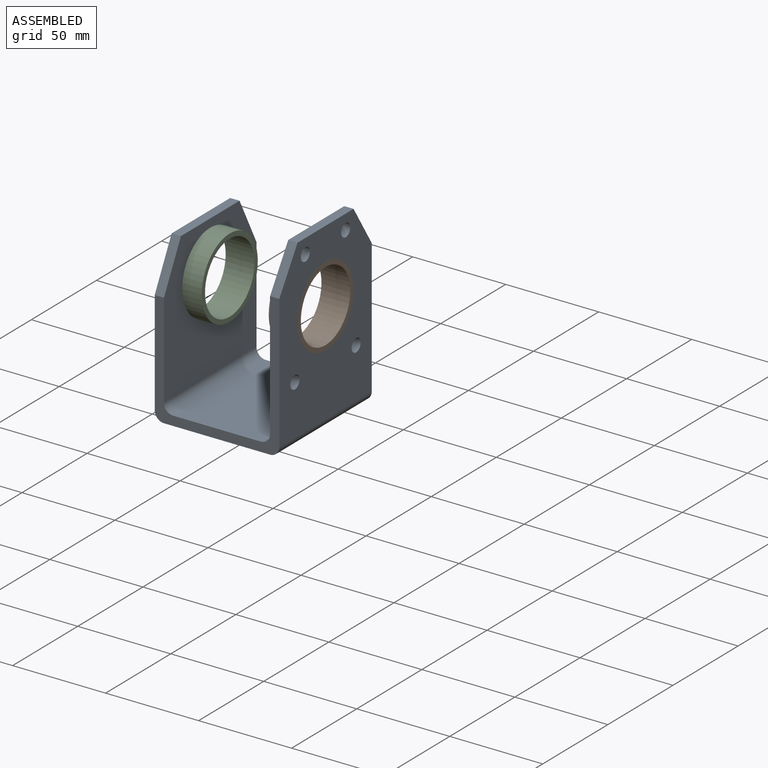
[diagram: assembled view]
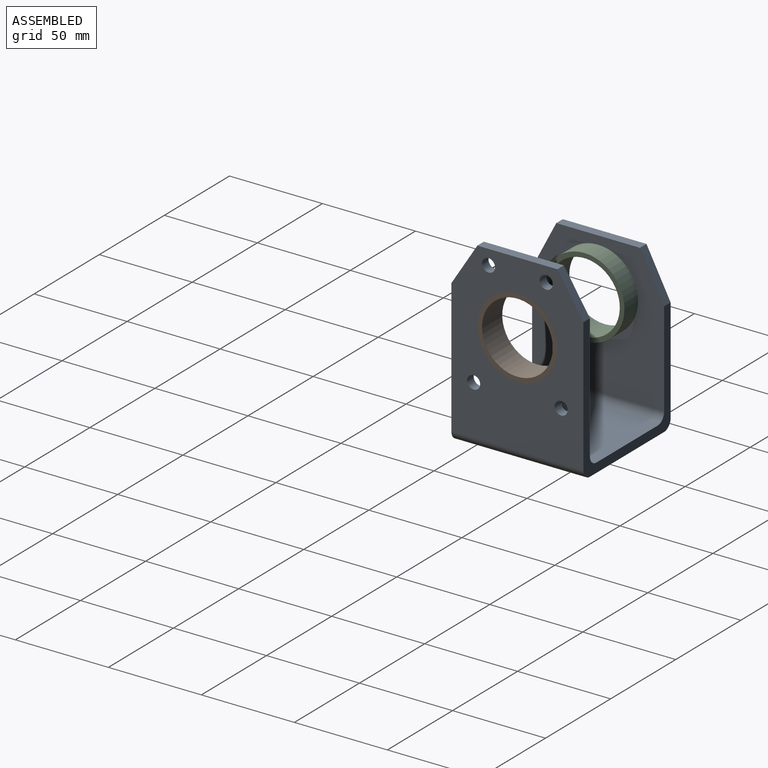
[diagram: assembled view, second angle]
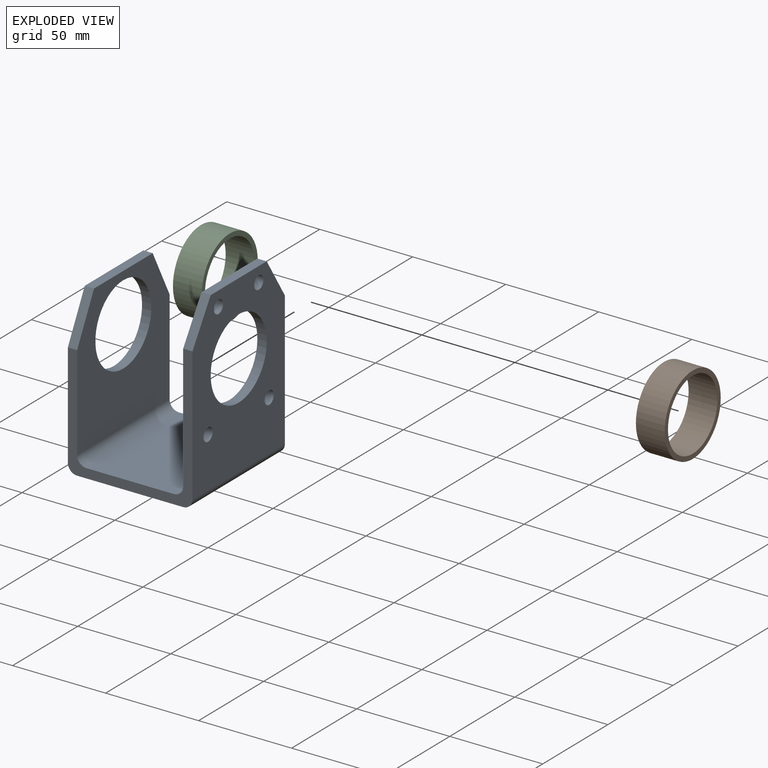
[diagram: exploded view]
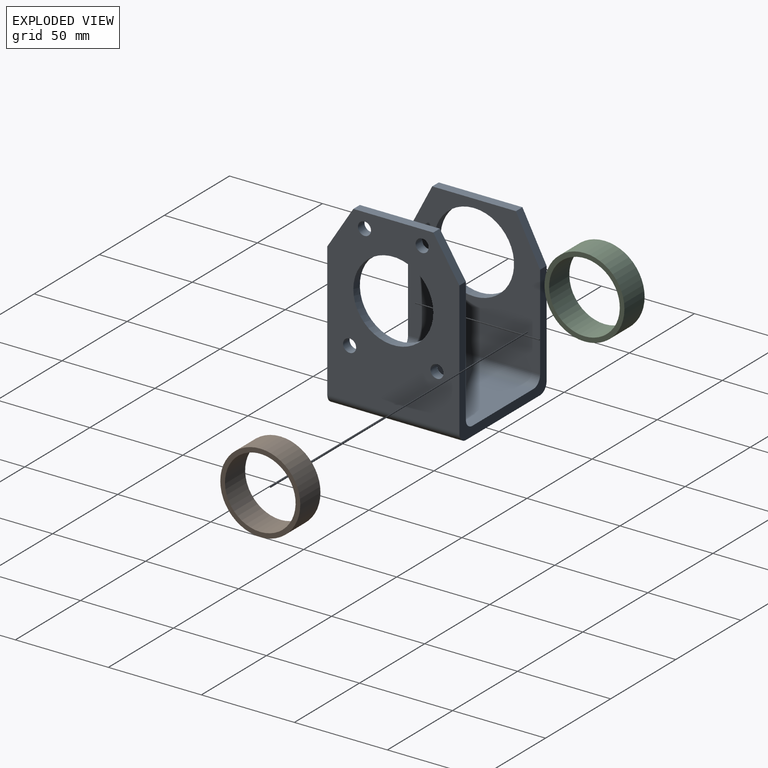
[diagram: exploded view, second angle]
ASSEMBLY  parts=3 mates=4
PART A: 24 faces, bbox 67x71x99 mm
  f0: plane 94x71mm, normal (1,0,0), area 4759.9mm2, adj f5,f6,f7,f10,f11,f14,f16,f17
  f1: plane 89x71mm, normal (-1,0,0), area 4404.9mm2, adj f5,f6,f7,f10,f11,f14,f16,f17
  f2: plane 76x71mm, normal (1,0,0), area 3618.8mm2, adj f3,f5,f6,f12,f13,f15,f23
  f3: plane 45x5mm, normal (0,0,1), area 225mm2, adj f2,f4,f12,f13
  f4: plane 81x71mm, normal (-1,0,0), area 3973.8mm2, adj f3,f5,f6,f12,f13,f15,f20
  f5: plane 77x67mm, normal (0,-1,0), area 975mm2, adj f0,f1,f2,f4,f8,f9,f11,f13
  f6: plane 77x67mm, normal (0,1,0), area 975mm2, adj f0,f1,f2,f4,f8,f9,f10,f12
  f7: plane 43x5mm, normal (0,0,1), area 215mm2, adj f0,f1,f10,f11
  f8: plane 71x57mm, normal (0,0,-1), area 4047mm2, adj f5,f6,f20,f21
  f9: plane 71x47mm, normal (0,0,1), area 3337mm2, adj f5,f6,f22,f23
  f10: plane 22x14mm, normal (0,0.84,0.54), area 130.4mm2, adj f0,f1,f6,f7
  f11: plane 22x14mm, normal (0,-0.84,0.54), area 130.4mm2, adj f0,f1,f5,f7
  f12: plane 25x13mm, normal (0,0.89,0.46), area 140.9mm2, adj f2,f3,f4,f6
  f13: plane 25x13mm, normal (0,-0.89,0.46), area 140.9mm2, adj f2,f3,f4,f5
  f14: cylinder r=21.5mm len=43mm, axis (1,0,0), area 675.4mm2, adj f0,f1
  f15: cylinder r=21.5mm len=43mm, axis (1,0,0), area 675.4mm2, adj f2,f4
  f16: cylinder r=3.5mm len=7mm, axis (1,0,0), area 110mm2, adj f0,f1
  f17: cylinder r=3.5mm len=7mm, axis (1,0,0), area 110mm2, adj f0,f1
  f18: cylinder r=3.5mm len=7mm, axis (1,0,0), area 110mm2, adj f0,f1
  f19: cylinder r=3.5mm len=7mm, axis (1,0,0), area 110mm2, adj f0,f1
  f20: cylinder r=5mm len=71mm, axis (0,1,0), area 557.6mm2, adj f4,f5,f6,f8
  f21: cylinder r=5mm len=71mm, axis (0,-1,0), area 557.6mm2, adj f0,f5,f6,f8
  f22: cylinder r=5mm len=71mm, axis (0,-1,0), area 557.6mm2, adj f1,f5,f6,f9
  f23: cylinder r=5mm len=71mm, axis (0,-1,0), area 557.6mm2, adj f2,f5,f6,f9
PART B: 4 faces, bbox 43x15.5x43 mm
  f0: cylinder r=19mm len=38mm, axis (0,1,0), area 1850.4mm2, adj f2,f3
  f1: cylinder r=21.5mm len=43mm, axis (0,1,0), area 2093.9mm2, adj f2,f3
  f2: plane 43x43mm, normal (0,-1,0), area 318.1mm2, adj f0,f1
  f3: plane 43x43mm, normal (0,1,0), area 318.1mm2, adj f0,f1
PART C: same geometry as B
PLACE A t=(-72.25,12.41,-8.08)mm fixed
PLACE B rot(axis=(0.58,0.58,-0.58),120deg) t=(-25.63,-23.09,27.07)mm
PLACE C rot(axis=(0.58,0.58,-0.58),120deg) t=(-77.13,-23.09,27.07)mm
MATE planar B.f0 <-> A.f0  axis (1,0,0) through (-25.63,-23.09,27.07)mm
MATE cylindrical C.f0 <-> A.f14  axis (1,0,0) through (-84.88,-23.09,27.07)mm
MATE planar C.f0 <-> A.f4  axis (-1,0,0) through (-92.63,-23.09,27.07)mm
MATE cylindrical B.f0 <-> A.f14  axis (1,0,0) through (-33.38,-23.09,27.07)mm
